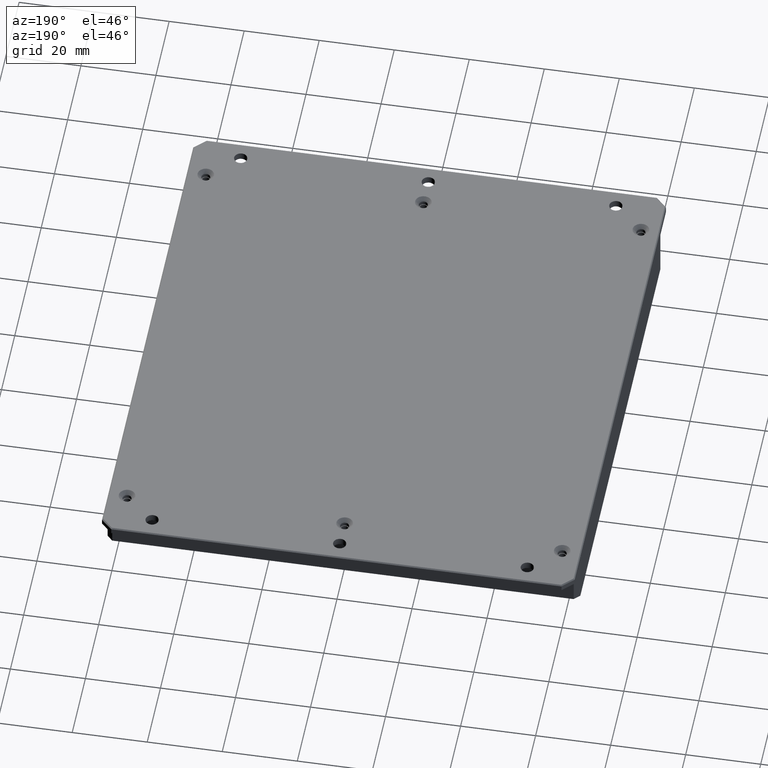
[diagram: clean part render]
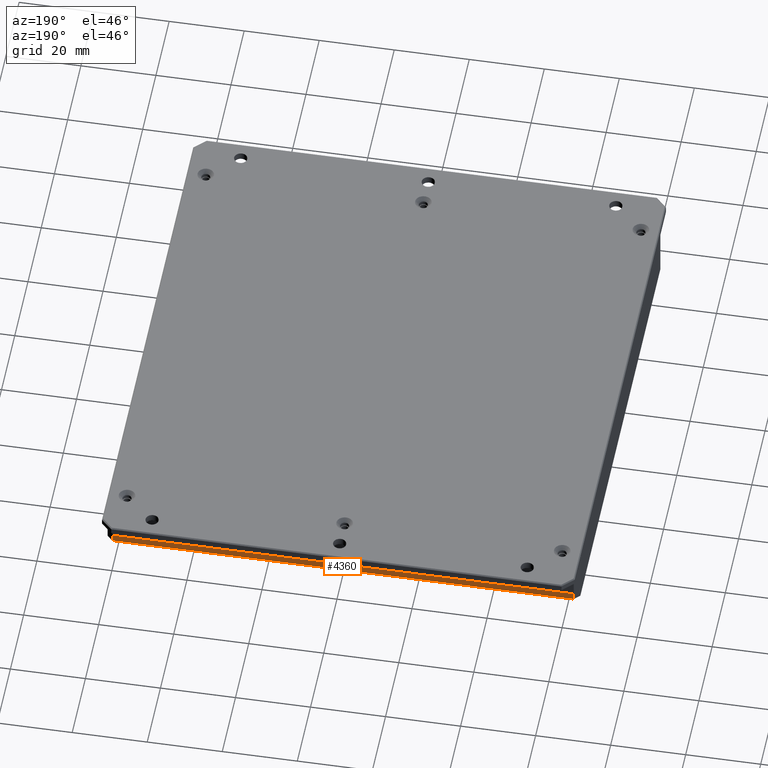
[diagram: same view with one face highlighted and labeled with its STEP entity id]
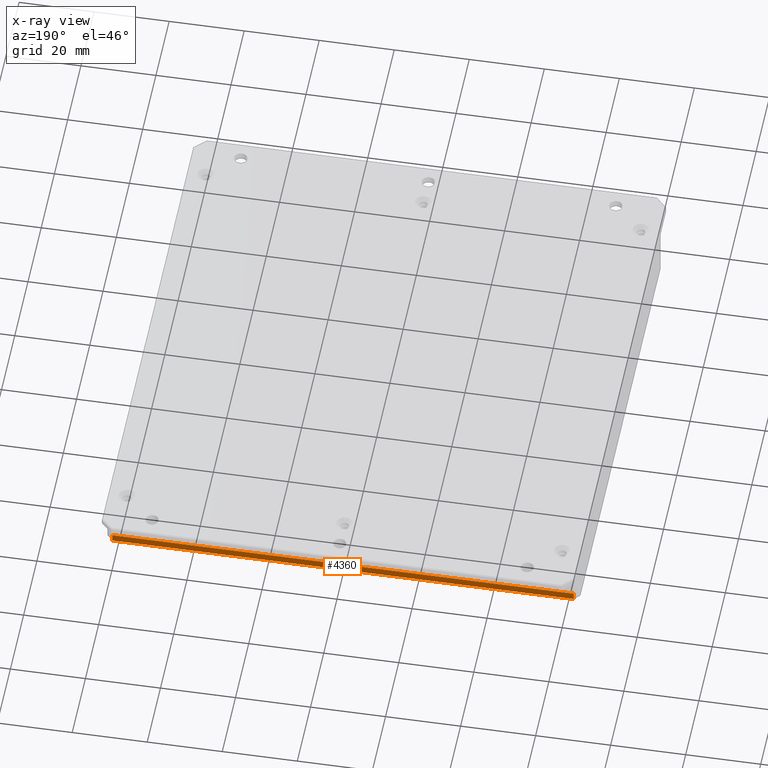
[diagram: x-ray of the same camera — body ghosted, the highlighted face saturated]
A machine part, auxiliary view. The second image highlights one B-rep face of the part: STEP entity #4360.
The next image is the same camera in x-ray: the body ghosted, the highlighted face saturated — about 0% of this face is hidden behind the body in this view.
In plain terms, the highlighted planar face has unit normal (-0, -1, 0).
Its self-contained STEP definition (entity closure, byte-faithful):
#4132 = VECTOR ( 'NONE', #40710, 1000.000000000000000 ) ;
#4305 = ORIENTED_EDGE ( 'NONE', *, *, #70962, .F. ) ;
#4360 = ADVANCED_FACE ( 'NONE', ( #24508 ), #82647, .F. ) ;
#6020 = LINE ( 'NONE', #88617, #49066 ) ;
#6094 = EDGE_CURVE ( 'NONE', #64689, #90237, #41584, .T. ) ;
#11172 = LINE ( 'NONE', #18574, #13364 ) ;
#11226 = DIRECTION ( 'NONE',  ( -0.0000000000000000000, 0.0000000000000000000, 1.000000000000000000 ) ) ;
#13364 = VECTOR ( 'NONE', #47492, 1000.000000000000000 ) ;
#13900 = CARTESIAN_POINT ( 'NONE',  ( 62.64490263459336500, 72.88965253913708900, -2.000000000016370500 ) ) ;
#18574 = CARTESIAN_POINT ( 'NONE',  ( 62.64490263459336500, 72.88965253913708900, -2.000000000016370500 ) ) ;
#19947 = LINE ( 'NONE', #35397, #30977 ) ;
#20651 = DIRECTION ( 'NONE',  ( -0.0000000000000000000, 0.0000000000000000000, 1.000000000000000000 ) ) ;
#24508 = FACE_OUTER_BOUND ( 'NONE', #37087, .T. ) ;
#30977 = VECTOR ( 'NONE', #83805, 1000.000000000000000 ) ;
#35397 = CARTESIAN_POINT ( 'NONE',  ( 62.64490263459336500, 72.88965253913708900, -1.637058544279312900E-011 ) ) ;
#37087 = EDGE_LOOP ( 'NONE', ( #4305, #52832, #76198, #55735 ) ) ;
#40710 = DIRECTION ( 'NONE',  ( -0.0000000000000000000, -0.0000000000000000000, 1.000000000000000000 ) ) ;
#41358 = AXIS2_PLACEMENT_3D ( 'NONE', #13900, #84155, #20651 ) ;
#41584 = LINE ( 'NONE', #82976, #4132 ) ;
#46317 = EDGE_CURVE ( 'NONE', #50715, #90237, #19947, .T. ) ;
#47492 = DIRECTION ( 'NONE',  ( 1.000000000000000000, -2.220446049250313100E-016, -0.0000000000000000000 ) ) ;
#48850 = CARTESIAN_POINT ( 'NONE',  ( -61.85509736540663500, 72.88965253913711700, -1.637058544279312900E-011 ) ) ;
#49066 = VECTOR ( 'NONE', #11226, 1000.000000000000000 ) ;
#50715 = VERTEX_POINT ( 'NONE', #61846 ) ;
#52832 = ORIENTED_EDGE ( 'NONE', *, *, #76042, .F. ) ;
#55735 = ORIENTED_EDGE ( 'NONE', *, *, #46317, .F. ) ;
#58481 = CARTESIAN_POINT ( 'NONE',  ( 61.14490263459339300, 72.88965253913708900, -2.000000000016370500 ) ) ;
#61846 = CARTESIAN_POINT ( 'NONE',  ( 61.14490263459339300, 72.88965253913708900, -1.636993492148963700E-011 ) ) ;
#63561 = VERTEX_POINT ( 'NONE', #58481 ) ;
#64689 = VERTEX_POINT ( 'NONE', #66060 ) ;
#66060 = CARTESIAN_POINT ( 'NONE',  ( -61.85509736540662100, 72.88965253913711700, -2.000000000016370500 ) ) ;
#70962 = EDGE_CURVE ( 'NONE', #63561, #50715, #6020, .T. ) ;
#76042 = EDGE_CURVE ( 'NONE', #64689, #63561, #11172, .T. ) ;
#76198 = ORIENTED_EDGE ( 'NONE', *, *, #6094, .T. ) ;
#82647 = PLANE ( 'NONE',  #41358 ) ;
#82976 = CARTESIAN_POINT ( 'NONE',  ( -61.85509736540662100, 72.88965253913714500, -2.000000000016370500 ) ) ;
#83805 = DIRECTION ( 'NONE',  ( -1.000000000000000000, 2.220446049250313100E-016, -0.0000000000000000000 ) ) ;
#84155 = DIRECTION ( 'NONE',  ( -2.220446049250313100E-016, -1.000000000000000000, 0.0000000000000000000 ) ) ;
#88617 = CARTESIAN_POINT ( 'NONE',  ( 61.14490263459339300, 72.88965253913708900, -2.000000000016370500 ) ) ;
#90237 = VERTEX_POINT ( 'NONE', #48850 ) ;